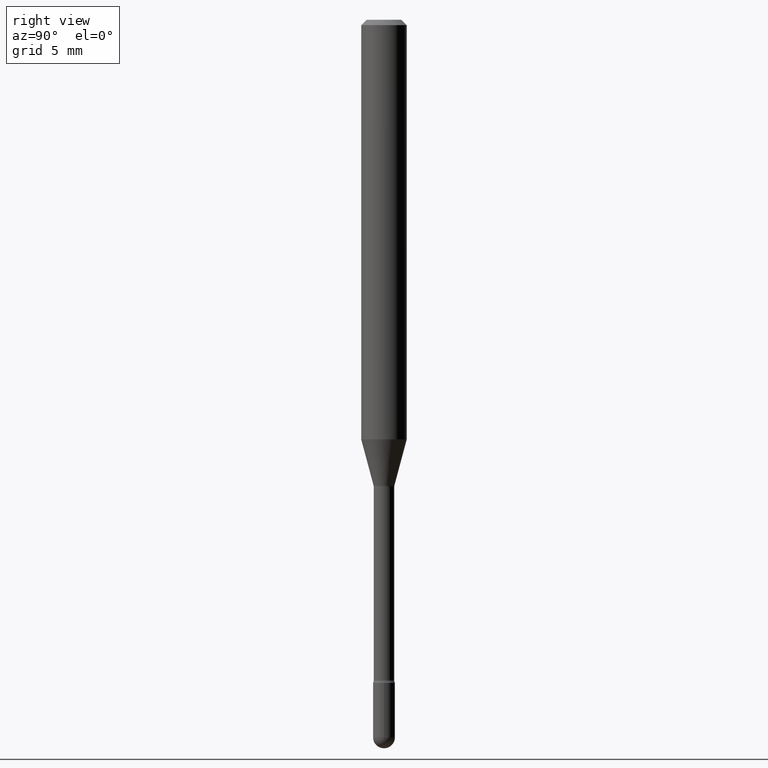
[diagram: clean part render]
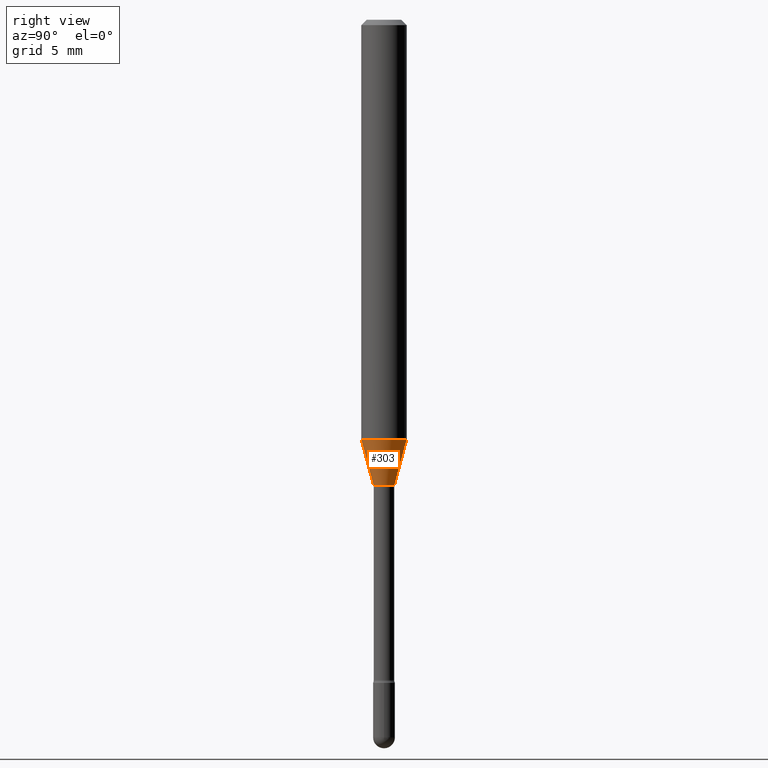
[diagram: same view with one face highlighted and labeled with its STEP entity id]
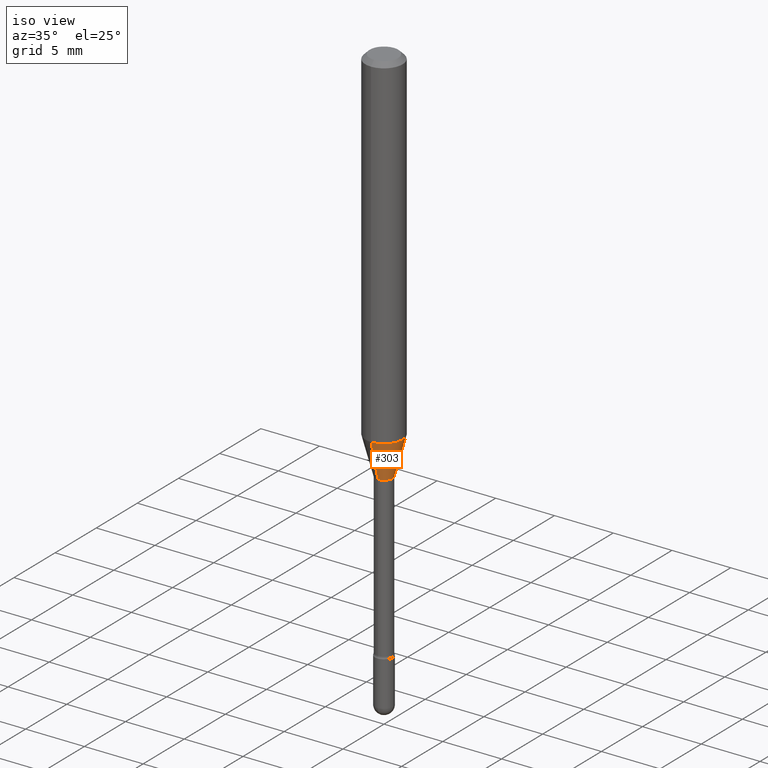
[diagram: same view with one face highlighted and labeled with its STEP entity id]
A machine part, right view. The second image highlights one B-rep face of the part: STEP entity #303.
A second angle (iso view) of the same face is appended — the face is thin or edge-on in the first view.
In plain terms, the highlighted conical surface has half-angle 15 deg.
Its self-contained STEP definition (entity closure, byte-faithful):
#16 = DIRECTION ( 'NONE',  ( -6.982962677686265922E-15, -1.000000000000000000, 4.370956789862821150E-15 ) ) ;
#19 = AXIS2_PLACEMENT_3D ( 'NONE', #215, #257, #467 ) ;
#20 = DIRECTION ( 'NONE',  ( -6.982962677686265133E-15, -1.000000000000000000, 0.000000000000000000 ) ) ;
#25 = AXIS2_PLACEMENT_3D ( 'NONE', #182, #273, #16 ) ;
#83 = EDGE_CURVE ( 'NONE', #220, #210, #166, .T. ) ;
#153 = CIRCLE ( 'NONE', #25, 0.06250000000000000000 ) ;
#155 = EDGE_CURVE ( 'NONE', #506, #210, #153, .T. ) ;
#166 = LINE ( 'NONE', #556, #515 ) ;
#171 = DIRECTION ( 'NONE',  ( 1.839019923739598738E-15, 0.2588190451025247363, 0.9659258262890673130 ) ) ;
#182 = CARTESIAN_POINT ( 'NONE',  ( 2.817161623775705020E-29, -4.022147572369319801E-15, -1.151990657300387744 ) ) ;
#187 = EDGE_CURVE ( 'NONE', #378, #506, #399, .T. ) ;
#210 = VERTEX_POINT ( 'NONE', #313 ) ;
#215 = CARTESIAN_POINT ( 'NONE',  ( 3.125540233206694433E-29, -4.462429118456514337E-15, -1.278092501787273072 ) ) ;
#220 = VERTEX_POINT ( 'NONE', #364 ) ;
#233 = CARTESIAN_POINT ( 'NONE',  ( -2.004886277601680082E-16, -0.02871111260566844292, -1.278092501787273072 ) ) ;
#235 = CARTESIAN_POINT ( 'NONE',  ( -2.004886277601680082E-16, -0.02871111260566844292, -1.278092501787273072 ) ) ;
#257 = DIRECTION ( 'NONE',  ( -2.445472631156169936E-29, 3.491475861266922095E-15, 1.000000000000000000 ) ) ;
#273 = DIRECTION ( 'NONE',  ( -2.445472631156169936E-29, 3.491475861266922095E-15, 1.000000000000000000 ) ) ;
#303 = ADVANCED_FACE ( 'NONE', ( #304 ), #552, .T. ) ;
#304 = FACE_OUTER_BOUND ( 'NONE', #430, .T. ) ;
#307 = ORIENTED_EDGE ( 'NONE', *, *, #155, .F. ) ;
#313 = CARTESIAN_POINT ( 'NONE',  ( 4.440892098500905221E-16, 0.06249999999999596156, -1.151990657300388188 ) ) ;
#361 = DIRECTION ( 'NONE',  ( -1.807323732225328562E-15, -0.2588190451025179639, 0.9659258262890690894 ) ) ;
#364 = CARTESIAN_POINT ( 'NONE',  ( 3.240469674127849816E-16, 0.02871111260565952297, -1.278092501787273072 ) ) ;
#378 = VERTEX_POINT ( 'NONE', #235 ) ;
#395 = CARTESIAN_POINT ( 'NONE',  ( 3.125540233206694433E-29, -4.462429118456514337E-15, -1.278092501787273072 ) ) ;
#396 = ORIENTED_EDGE ( 'NONE', *, *, #83, .T. ) ;
#399 = LINE ( 'NONE', #233, #477 ) ;
#430 = EDGE_LOOP ( 'NONE', ( #566, #396, #307, #479 ) ) ;
#457 = CIRCLE ( 'NONE', #19, 0.02871111260566398468 ) ;
#467 = DIRECTION ( 'NONE',  ( -6.982962677686265133E-15, -1.000000000000000000, 0.000000000000000000 ) ) ;
#477 = VECTOR ( 'NONE', #361, 39.37007874015748854 ) ;
#479 = ORIENTED_EDGE ( 'NONE', *, *, #187, .F. ) ;
#506 = VERTEX_POINT ( 'NONE', #508 ) ;
#508 = CARTESIAN_POINT ( 'NONE',  ( -4.364351673553637142E-16, -0.06250000000000405231, -1.151990657300387522 ) ) ;
#515 = VECTOR ( 'NONE', #171, 39.37007874015748854 ) ;
#522 = DIRECTION ( 'NONE',  ( -2.445472631156169936E-29, 3.491475861266922095E-15, 1.000000000000000000 ) ) ;
#552 = CONICAL_SURFACE ( 'NONE', #560, 0.02871111260566398468, 0.2617993877991500740 ) ;
#556 = CARTESIAN_POINT ( 'NONE',  ( 2.040047249754790959E-16, 0.02871111260565952297, -1.278092501787273072 ) ) ;
#560 = AXIS2_PLACEMENT_3D ( 'NONE', #395, #522, #20 ) ;
#564 = EDGE_CURVE ( 'NONE', #378, #220, #457, .T. ) ;
#566 = ORIENTED_EDGE ( 'NONE', *, *, #564, .T. ) ;